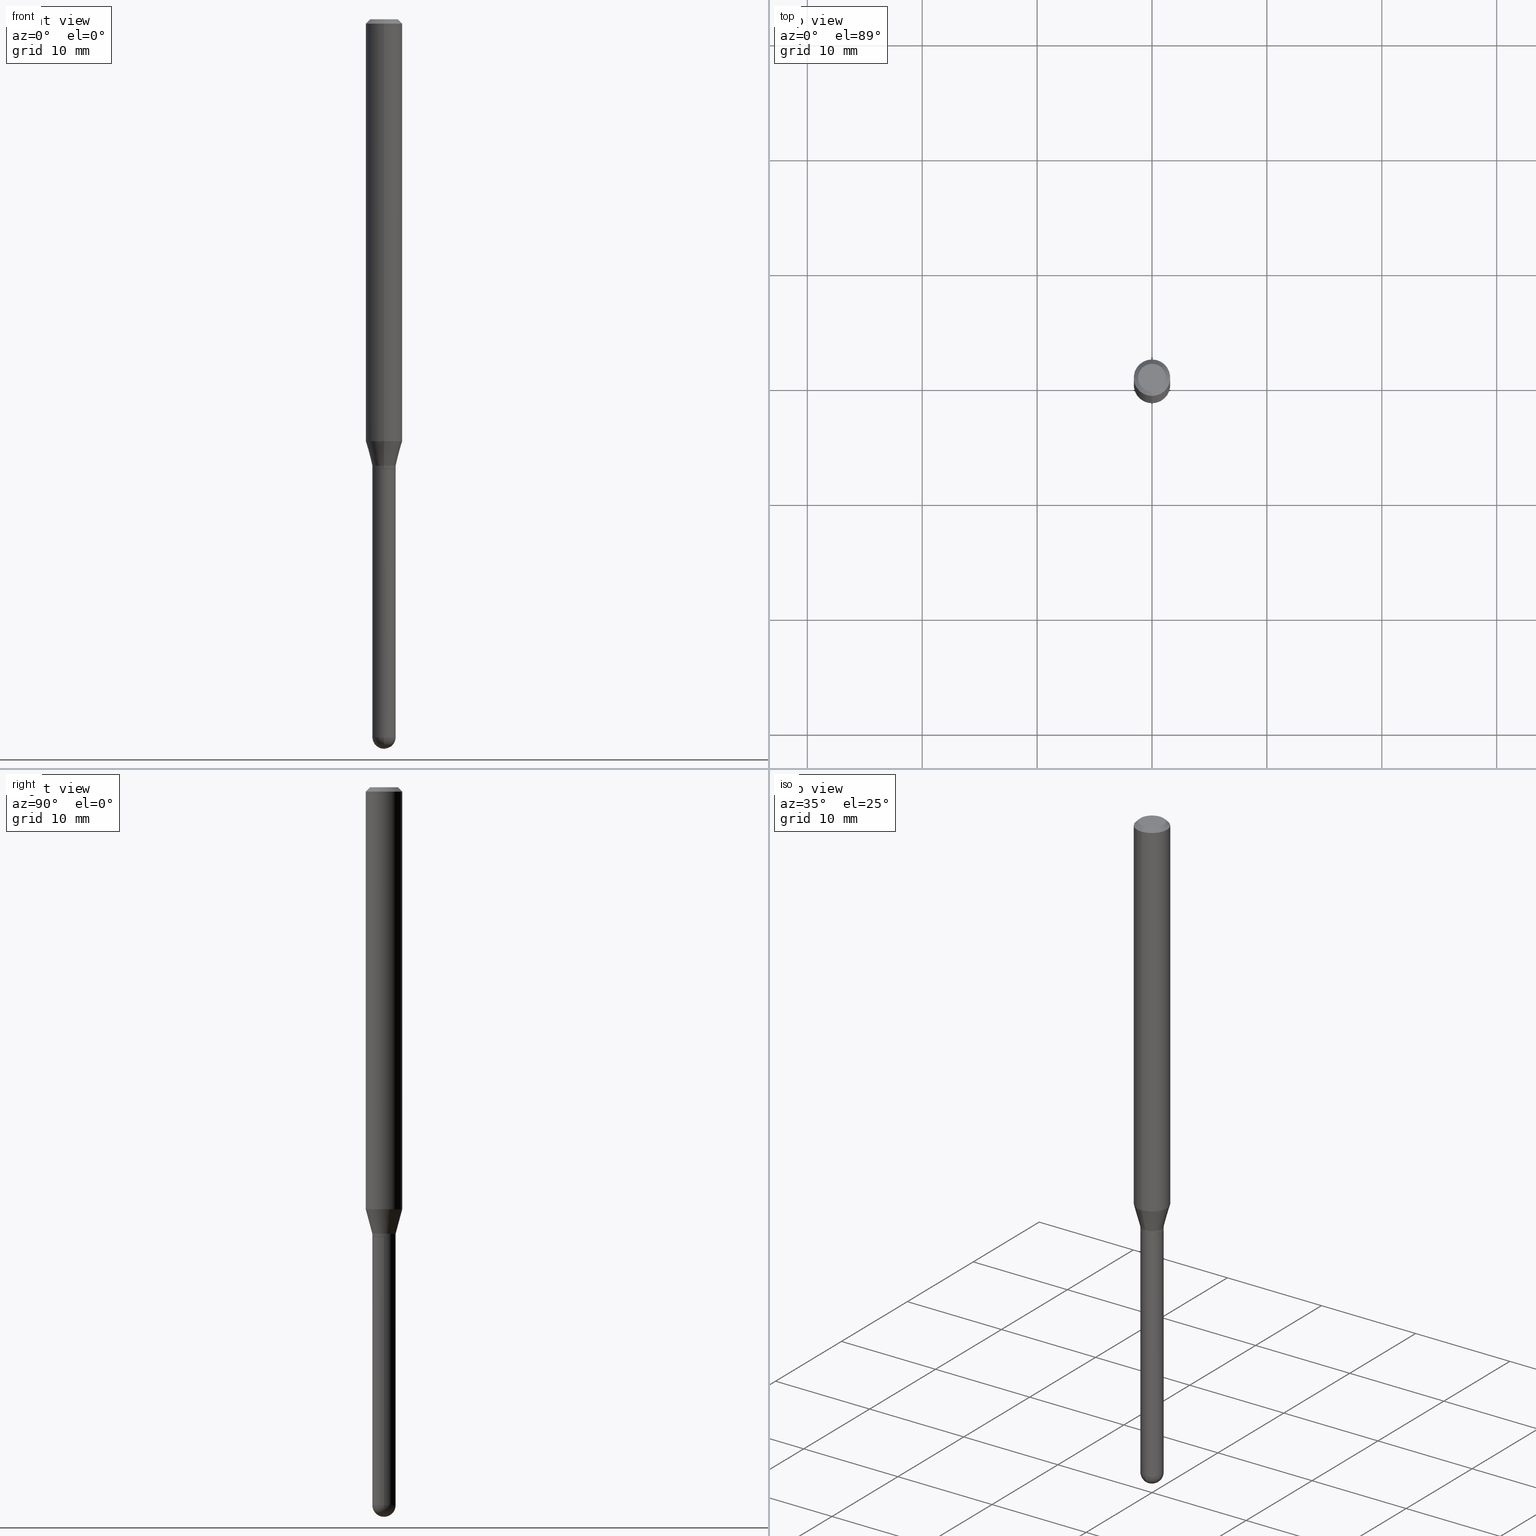
[diagram: canonical four-view strip — front | top / right | iso, engineering-drawing reading convention]
A machine part, canonical four-view strip (front | top / right | iso — engineering-drawing reading convention). The complete STEP part file that produces these views, byte-faithful:
ISO-10303-21;
HEADER;
FILE_DESCRIPTION (( 'STEP AP203' ),
    '1' );
FILE_NAME ('01024.STEP',
    '2024-03-07T19:53:04',
    ( '' ),
    ( '' ),
    'SwSTEP 2.0',
    'SolidWorks 2023',
    '' );
FILE_SCHEMA (( 'CONFIG_CONTROL_DESIGN' ));
ENDSEC;

DATA;
#1 = DIRECTION ( 'NONE',  ( -2.445439558819797748E-29, 3.491523222734966752E-15, 1.000000000000000000 ) ) ;
#2 = ORIENTED_EDGE ( 'NONE', *, *, #418, .F. ) ;
#3 = DIRECTION ( 'NONE',  ( -2.445468806185136597E-29, 3.491481338843145583E-15, 1.000000000000000000 ) ) ;
#4 = EDGE_CURVE ( 'NONE', #256, #79, #27, .T. ) ;
#5 = ORIENTED_EDGE ( 'NONE', *, *, #51, .T. ) ;
#6 = CC_DESIGN_APPROVAL ( #399, ( #335 ) ) ;
#7 = FACE_OUTER_BOUND ( 'NONE', #200, .T. ) ;
#8 = ORIENTED_EDGE ( 'NONE', *, *, #202, .F. ) ;
#9 = EDGE_CURVE ( 'NONE', #159, #447, #180, .T. ) ;
#10 = DIRECTION ( 'NONE',  ( 1.000000000000000000, -6.982962677686259611E-15, 0.000000000000000000 ) ) ;
#11 = ORIENTED_EDGE ( 'NONE', *, *, #299, .T. ) ;
#12 = COORDINATED_UNIVERSAL_TIME_OFFSET ( 5, 0, .BEHIND. ) ;
#13 = CARTESIAN_POINT ( 'NONE',  ( -2.793185071074095589E-16, -0.04000000000000489275, -1.539500000000000091 ) ) ;
#14 = ORIENTED_EDGE ( 'NONE', *, *, #226, .T. ) ;
#15 = VECTOR ( 'NONE', #104, 39.37007874015748143 ) ;
#16 = AXIS2_PLACEMENT_3D ( 'NONE', #512, #158, #109 ) ;
#17 = ORIENTED_EDGE ( 'NONE', *, *, #288, .T. ) ;
#18 = DIRECTION ( 'NONE',  ( 1.000000000000000000, -6.982962677686259611E-15, 0.000000000000000000 ) ) ;
#19 = DIRECTION ( 'NONE',  ( 5.024295867788190974E-15, 0.7071067811865681119, 0.7071067811865270336 ) ) ;
#20 = ADVANCED_FACE ( 'NONE', ( #456 ), #100, .F. ) ;
#21 = AXIS2_PLACEMENT_3D ( 'NONE', #161, #73, #388 ) ;
#22 = CIRCLE ( 'NONE', #138, 0.04749999999999999362 ) ;
#23 = CARTESIAN_POINT ( 'NONE',  ( 3.765976920582489743E-29, -5.376945763011849548E-15, -1.540000000000000036 ) ) ;
#24 = DIRECTION ( 'NONE',  ( -2.445439558819798028E-29, 3.491523222734966752E-15, 1.000000000000000000 ) ) ;
#25 = ADVANCED_FACE ( 'NONE', ( #72 ), #68, .T. ) ;
#26 = DIRECTION ( 'NONE',  ( -2.445439558819797748E-29, 3.491523222734966752E-15, 1.000000000000000000 ) ) ;
#27 = CIRCLE ( 'NONE', #165, 0.04000000000000000083 ) ;
#28 = ADVANCED_FACE ( 'NONE', ( #496 ), #197, .T. ) ;
#29 = APPROVAL_PERSON_ORGANIZATION ( #284, #229, #133 ) ;
#30 = CARTESIAN_POINT ( 'NONE',  ( 3.536176169686316712E-29, -5.048843334365790942E-15, -1.446028856829699283 ) ) ;
#31 = ORIENTED_EDGE ( 'NONE', *, *, #273, .T. ) ;
#32 = COORDINATED_UNIVERSAL_TIME_OFFSET ( 5, 0, .BEHIND. ) ;
#33 = CARTESIAN_POINT ( 'NONE',  ( 3.764754200803079787E-29, -5.375200001400483162E-15, -1.539500000000000313 ) ) ;
#34 = ORIENTED_EDGE ( 'NONE', *, *, #90, .F. ) ;
#35 = FACE_OUTER_BOUND ( 'NONE', #466, .T. ) ;
#36 = CARTESIAN_POINT ( 'NONE',  ( 6.012432598058718877E-29, -8.593942680750727058E-15, -2.459999999999999964 ) ) ;
#37 = ORIENTED_EDGE ( 'NONE', *, *, #264, .F. ) ;
#38 = EDGE_CURVE ( 'NONE', #368, #332, #497, .T. ) ;
#39 = SPHERICAL_SURFACE ( 'NONE', #377, 0.04000000000000007022 ) ;
#40 = DIRECTION ( 'NONE',  ( -2.445439558819798028E-29, 3.491523222734966752E-15, 1.000000000000000000 ) ) ;
#41 = VERTEX_POINT ( 'NONE', #148 ) ;
#42 = CIRCLE ( 'NONE', #467, 0.04000000000000000083 ) ;
#43 = DIMENSIONAL_EXPONENTS ( 1.000000000000000000, 0.000000000000000000, 0.000000000000000000, 0.000000000000000000, 0.000000000000000000, 0.000000000000000000, 0.000000000000000000 ) ;
#44 = CARTESIAN_POINT ( 'NONE',  ( 3.840629472727447874E-16, 0.04749999999999999362, -1.747056831868805136E-16 ) ) ;
#45 = CARTESIAN_POINT ( 'NONE',  ( 3.641531520770863293E-16, 0.03999999999999429706, -1.530000000000000249 ) ) ;
#46 = EDGE_CURVE ( 'NONE', #401, #175, #457, .T. ) ;
#47 = CARTESIAN_POINT ( 'NONE',  ( 3.668159338229699547E-31, -5.237284834102453580E-17, -0.01500000000000000812 ) ) ;
#48 = ORIENTED_EDGE ( 'NONE', *, *, #299, .F. ) ;
#49 = PERSON_AND_ORGANIZATION ( #509, #167 ) ;
#50 = CARTESIAN_POINT ( 'NONE',  ( 2.824407374646762144E-16, 0.03949999999999462275, -1.540000000000000258 ) ) ;
#51 = EDGE_CURVE ( 'NONE', #332, #487, #225, .T. ) ;
#52 = APPLICATION_CONTEXT ( 'configuration controlled 3d designs of mechanical parts and assemblies' ) ;
#53 = ORIENTED_EDGE ( 'NONE', *, *, #372, .F. ) ;
#54 = AXIS2_PLACEMENT_3D ( 'NONE', #30, #461, #425 ) ;
#55 = CIRCLE ( 'NONE', #120, 0.04000000000000000083 ) ;
#56 = PERSON_AND_ORGANIZATION ( #509, #167 ) ;
#57 = DIRECTION ( 'NONE',  ( 1.000000000000000000, -6.982962677686259611E-15, 0.000000000000000000 ) ) ;
#58 = EDGE_LOOP ( 'NONE', ( #61, #341, #163, #412 ) ) ;
#59 = DIRECTION ( 'NONE',  ( -6.982962677686265922E-15, -1.000000000000000000, 3.483106191921935554E-15 ) ) ;
#60 = MANIFOLD_SOLID_BREP ( 'Body-Move/Copy2[1]', #303 ) ;
#61 = ORIENTED_EDGE ( 'NONE', *, *, #9, .F. ) ;
#62 = EDGE_LOOP ( 'NONE', ( #34, #394, #371, #249, #135 ) ) ;
#63 = AXIS2_PLACEMENT_3D ( 'NONE', #230, #185, #346 ) ;
#64 = CIRCLE ( 'NONE', #490, 0.03999999999999964695 ) ;
#65 = DIRECTION ( 'NONE',  ( -2.445439558819798028E-29, 3.491523222734966752E-15, 1.000000000000000000 ) ) ;
#66 = CARTESIAN_POINT ( 'NONE',  ( 3.741522524994291182E-29, -5.342030530784498954E-15, -1.530000000000000027 ) ) ;
#67 = DIRECTION ( 'NONE',  ( -6.982962677686265922E-15, -1.000000000000000000, 3.491523222734966752E-15 ) ) ;
#68 = CONICAL_SURFACE ( 'NONE', #63, 0.03999999999999964001, 0.2617993877991502405 ) ;
#69 = LOCAL_TIME ( 14, 53, 4.000000000000000000, #32 ) ;
#70 = CARTESIAN_POINT ( 'NONE',  ( 0.000000000000000000, 0.000000000000000000, 0.000000000000000000 ) ) ;
#71 = EDGE_CURVE ( 'NONE', #159, #175, #347, .T. ) ;
#72 = FACE_OUTER_BOUND ( 'NONE', #290, .T. ) ;
#73 = DIRECTION ( 'NONE',  ( -2.445439558819798028E-29, 3.491523222734966752E-15, 1.000000000000000000 ) ) ;
#74 = AXIS2_PLACEMENT_3D ( 'NONE', #84, #398, #116 ) ;
#75 = CARTESIAN_POINT ( 'NONE',  ( 3.766021961525111077E-29, -5.376881261818445562E-15, -1.540000000000000258 ) ) ;
#76 = CALENDAR_DATE ( 2024, 7, 3 ) ;
#77 = CARTESIAN_POINT ( 'NONE',  ( 3.764754200803079787E-29, -5.375200001400483162E-15, -1.539500000000000313 ) ) ;
#78 = EDGE_CURVE ( 'NONE', #175, #452, #261, .T. ) ;
#79 = VERTEX_POINT ( 'NONE', #417 ) ;
#80 = PERSON_AND_ORGANIZATION_ROLE ( 'design_owner' ) ;
#81 = FACE_OUTER_BOUND ( 'NONE', #283, .T. ) ;
#82 = DIRECTION ( 'NONE',  ( 1.000000000000000000, -6.982962677686259611E-15, 0.000000000000000000 ) ) ;
#83 = AXIS2_PLACEMENT_3D ( 'NONE', #77, #349, #469 ) ;
#84 = CARTESIAN_POINT ( 'NONE',  ( 0.000000000000000000, 0.000000000000000000, 0.000000000000000000 ) ) ;
#85 = CIRCLE ( 'NONE', #110, 0.04749999999999999362 ) ;
#86 = EDGE_CURVE ( 'NONE', #447, #452, #131, .T. ) ;
#87 = DIRECTION ( 'NONE',  ( -2.445468806185136597E-29, 3.491481338843145583E-15, 1.000000000000000000 ) ) ;
#88 = CARTESIAN_POINT ( 'NONE',  ( 3.668159338229699547E-31, -5.237284834102453580E-17, -0.01500000000000000812 ) ) ;
#89 = ORIENTED_EDGE ( 'NONE', *, *, #214, .T. ) ;
#90 = EDGE_CURVE ( 'NONE', #177, #476, #304, .T. ) ;
#91 = FACE_OUTER_BOUND ( 'NONE', #173, .T. ) ;
#92 = ORIENTED_EDGE ( 'NONE', *, *, #354, .F. ) ;
#93 = SHAPE_DEFINITION_REPRESENTATION ( #338, #139 ) ;
#94 = DIRECTION ( 'NONE',  ( -4.851104656540964275E-15, -0.7071067811865500152, -0.7071067811865450192 ) ) ;
#95 = ORIENTED_EDGE ( 'NONE', *, *, #427, .T. ) ;
#96 = DIRECTION ( 'NONE',  ( -2.445439558819798028E-29, 3.491523222734966752E-15, 1.000000000000000000 ) ) ;
#97 = EDGE_CURVE ( 'NONE', #368, #401, #265, .T. ) ;
#98 = ORIENTED_EDGE ( 'NONE', *, *, #46, .F. ) ;
#99 = EDGE_LOOP ( 'NONE', ( #112, #17, #433, #219 ) ) ;
#100 = PLANE ( 'NONE',  #458 ) ;
#101 = CIRCLE ( 'NONE', #252, 0.06250000000000000000 ) ;
#102 = DIRECTION ( 'NONE',  ( 1.839019923739599921E-15, 0.2588190451025249028, 0.9659258262890670910 ) ) ;
#103 = DIRECTION ( 'NONE',  ( -1.807323732225329745E-15, -0.2588190451025181305, 0.9659258262890689783 ) ) ;
#104 = DIRECTION ( 'NONE',  ( -4.937700262164674260E-15, -0.7071067811865632269, 0.7071067811865319186 ) ) ;
#105 = AXIS2_PLACEMENT_3D ( 'NONE', #36, #280, #238 ) ;
#106 = PRODUCT_DEFINITION_FORMATION_WITH_SPECIFIED_SOURCE ( 'ANY', '', #434, .NOT_KNOWN. ) ;
#107 = DIRECTION ( 'NONE',  ( -2.445439558819798028E-29, 3.491523222734966752E-15, 1.000000000000000000 ) ) ;
#108 = CARTESIAN_POINT ( 'NONE',  ( 3.766021961525111077E-29, -5.376881261818445562E-15, -1.540000000000000258 ) ) ;
#109 = DIRECTION ( 'NONE',  ( -6.982962677686265133E-15, -1.000000000000000000, 6.916070870036109544E-15 ) ) ;
#110 = AXIS2_PLACEMENT_3D ( 'NONE', #272, #236, #174 ) ;
#111 = CARTESIAN_POINT ( 'NONE',  ( -0.04000000000000000083, -6.698745583382250838E-15, -2.459999999999999964 ) ) ;
#112 = ORIENTED_EDGE ( 'NONE', *, *, #427, .F. ) ;
#113 = CARTESIAN_POINT ( 'NONE',  ( 4.440892098500982135E-16, 0.06249999999999995837, -0.01500000000000022669 ) ) ;
#114 = PRODUCT_DEFINITION ( 'UNKNOWN', '', #106, #144 ) ;
#115 = DIRECTION ( 'NONE',  ( 1.000000000000000000, -6.982962677686259611E-15, 0.000000000000000000 ) ) ;
#116 = DIRECTION ( 'NONE',  ( 1.000000000000000000, -6.982962677686265922E-15, 4.876176775795935793E-29 ) ) ;
#117 = ADVANCED_FACE ( 'NONE', ( #420 ), #218, .T. ) ;
#118 = VECTOR ( 'NONE', #103, 39.37007874015748143 ) ;
#119 = DIRECTION ( 'NONE',  ( -6.982962677686265922E-15, -1.000000000000000000, 3.491523222734966752E-15 ) ) ;
#120 = AXIS2_PLACEMENT_3D ( 'NONE', #446, #289, #10 ) ;
#121 = ORIENTED_EDGE ( 'NONE', *, *, #504, .T. ) ;
#122 = CC_DESIGN_PERSON_AND_ORGANIZATION_ASSIGNMENT ( #488, #375, ( #106 ) ) ;
#123 = CARTESIAN_POINT ( 'NONE',  ( 4.440892098500981149E-16, 0.06249999999999499012, -1.446028856829699505 ) ) ;
#124 = ORIENTED_EDGE ( 'NONE', *, *, #264, .T. ) ;
#125 = PERSON_AND_ORGANIZATION ( #509, #167 ) ;
#126 = CARTESIAN_POINT ( 'NONE',  ( 0.000000000000000000, 0.000000000000000000, 0.000000000000000000 ) ) ;
#127 = ORIENTED_EDGE ( 'NONE', *, *, #162, .T. ) ;
#128 = DATE_AND_TIME ( #444, #262 ) ;
#129 = LINE ( 'NONE', #480, #269 ) ;
#130 = ORIENTED_EDGE ( 'NONE', *, *, #4, .F. ) ;
#131 = CIRCLE ( 'NONE', #383, 0.06250000000000000000 ) ;
#132 = CIRCLE ( 'NONE', #183, 0.04000000000000007022 ) ;
#133 = APPROVAL_ROLE ( '' ) ;
#134 = ORIENTED_EDGE ( 'NONE', *, *, #38, .F. ) ;
#135 = ORIENTED_EDGE ( 'NONE', *, *, #209, .F. ) ;
#136 = EDGE_CURVE ( 'NONE', #332, #368, #489, .T. ) ;
#137 = CARTESIAN_POINT ( 'NONE',  ( 3.741522524994291182E-29, -5.342030530784498954E-15, -1.530000000000000027 ) ) ;
#138 = AXIS2_PLACEMENT_3D ( 'NONE', #362, #359, #507 ) ;
#139 = ADVANCED_BREP_SHAPE_REPRESENTATION ( '01024', ( #60, #223, #296 ), #326 ) ;
#140 = CARTESIAN_POINT ( 'NONE',  ( -2.793185071074107422E-16, -0.04000000000000498296, -1.529999999999999805 ) ) ;
#141 = DIRECTION ( 'NONE',  ( -2.445468806185136877E-29, 3.491481338843145188E-15, 1.000000000000000000 ) ) ;
#142 = EDGE_CURVE ( 'NONE', #256, #258, #500, .T. ) ;
#143 = CARTESIAN_POINT ( 'NONE',  ( 0.04000000000000000083, -2.793185071074506290E-16, 1.950470710318374387E-30 ) ) ;
#144 = DESIGN_CONTEXT ( 'detailed design', #413, 'design' ) ;
#145 = AXIS2_PLACEMENT_3D ( 'NONE', #75, #472, #436 ) ;
#146 = CC_DESIGN_APPROVAL ( #179, ( #114 ) ) ;
#147 = CC_DESIGN_DATE_AND_TIME_ASSIGNMENT ( #178, #411, ( #335 ) ) ;
#148 = CARTESIAN_POINT ( 'NONE',  ( -3.773273898774340269E-16, -0.04749999999999999362, 1.569890229729413328E-16 ) ) ;
#149 = FACE_OUTER_BOUND ( 'NONE', #246, .T. ) ;
#150 = COORDINATED_UNIVERSAL_TIME_OFFSET ( 5, 0, .BEHIND. ) ;
#151 = DIRECTION ( 'NONE',  ( -6.982962677686266711E-15, -1.000000000000000000, 6.829619984160719774E-15 ) ) ;
#152 = DATE_AND_TIME ( #76, #278 ) ;
#153 = AXIS2_PLACEMENT_3D ( 'NONE', #503, #307, #308 ) ;
#154 = DIRECTION ( 'NONE',  ( -1.000000000000000000, 6.982962677686265922E-15, -4.883557194083112340E-29 ) ) ;
#155 = EDGE_LOOP ( 'NONE', ( #213, #5, #8, #297 ) ) ;
#156 = PERSON_AND_ORGANIZATION ( #509, #167 ) ;
#157 = ADVANCED_FACE ( 'NONE', ( #266 ), #421, .T. ) ;
#158 = DIRECTION ( 'NONE',  ( -2.445439558819798028E-29, 3.491523222734966752E-15, 1.000000000000000000 ) ) ;
#159 = VERTEX_POINT ( 'NONE', #45 ) ;
#160 = CARTESIAN_POINT ( 'NONE',  ( 0.000000000000000000, 0.000000000000000000, 0.000000000000000000 ) ) ;
#161 = CARTESIAN_POINT ( 'NONE',  ( 0.000000000000000000, 0.000000000000000000, 0.000000000000000000 ) ) ;
#162 = EDGE_CURVE ( 'NONE', #447, #492, #432, .T. ) ;
#163 = ORIENTED_EDGE ( 'NONE', *, *, #78, .T. ) ;
#164 =( LENGTH_UNIT ( ) NAMED_UNIT ( * ) SI_UNIT ( $, .METRE. ) );
#165 = AXIS2_PLACEMENT_3D ( 'NONE', #224, #228, #18 ) ;
#166 = FACE_OUTER_BOUND ( 'NONE', #205, .T. ) ;
#167 = ORGANIZATION ( 'UNSPECIFIED', 'UNSPECIFIED', '' ) ;
#168 = VERTEX_POINT ( 'NONE', #275 ) ;
#169 = DIRECTION ( 'NONE',  ( -2.445439558819798028E-29, 3.491523222734966752E-15, 1.000000000000000000 ) ) ;
#170 = ORIENTED_EDGE ( 'NONE', *, *, #334, .F. ) ;
#171 = ADVANCED_FACE ( 'NONE', ( #464 ), #352, .T. ) ;
#172 = LINE ( 'NONE', #331, #416 ) ;
#173 = EDGE_LOOP ( 'NONE', ( #48, #300, #353, #324 ) ) ;
#174 = DIRECTION ( 'NONE',  ( -6.982962677686266711E-15, -1.000000000000000000, 3.491523222734967147E-15 ) ) ;
#175 = VERTEX_POINT ( 'NONE', #243 ) ;
#176 = AXIS2_PLACEMENT_3D ( 'NONE', #251, #169, #119 ) ;
#177 = VERTEX_POINT ( 'NONE', #111 ) ;
#178 = DATE_AND_TIME ( #211, #186 ) ;
#179 = APPROVAL ( #474, 'UNSPECIFIED' ) ;
#180 = LINE ( 'NONE', #424, #277 ) ;
#181 = ORIENTED_EDGE ( 'NONE', *, *, #323, .F. ) ;
#182 = VECTOR ( 'NONE', #1, 39.37007874015748143 ) ;
#183 = AXIS2_PLACEMENT_3D ( 'NONE', #449, #440, #292 ) ;
#184 = DIRECTION ( 'NONE',  ( -2.445439558819798028E-29, 3.491523222734966752E-15, 1.000000000000000000 ) ) ;
#185 = DIRECTION ( 'NONE',  ( -2.445439558819798028E-29, 3.491523222734966752E-15, 1.000000000000000000 ) ) ;
#186 = LOCAL_TIME ( 14, 53, 4.000000000000000000, #12 ) ;
#187 = DIRECTION ( 'NONE',  ( -6.982962677686266711E-15, -1.000000000000000000, 3.491523222734967147E-15 ) ) ;
#188 = ORIENTED_EDGE ( 'NONE', *, *, #78, .F. ) ;
#189 = DATE_AND_TIME ( #471, #69 ) ;
#190 = DIRECTION ( 'NONE',  ( 6.982962677686265922E-15, 1.000000000000000000, -6.829619984160646410E-15 ) ) ;
#191 = ORIENTED_EDGE ( 'NONE', *, *, #445, .T. ) ;
#192 = CARTESIAN_POINT ( 'NONE',  ( -4.364351673553559242E-16, -0.06250000000000500988, -1.446028856829699061 ) ) ;
#193 = PLANE ( 'NONE',  #316 ) ;
#194 = ORIENTED_EDGE ( 'NONE', *, *, #51, .F. ) ;
#195 = DATE_TIME_ROLE ( 'creation_date' ) ;
#196 = AXIS2_PLACEMENT_3D ( 'NONE', #70, #24, #187 ) ;
#197 = CONICAL_SURFACE ( 'NONE', #465, 0.03999999999999964001, 0.2617993877991502405 ) ;
#198 = AXIS2_PLACEMENT_3D ( 'NONE', #396, #40, #151 ) ;
#199 = FACE_OUTER_BOUND ( 'NONE', #484, .T. ) ;
#200 = EDGE_LOOP ( 'NONE', ( #429, #127, #170, #37 ) ) ;
#201 = DIRECTION ( 'NONE',  ( -1.000000000000000000, 6.982962677686265922E-15, -4.883557194083112340E-29 ) ) ;
#202 = EDGE_CURVE ( 'NONE', #401, #487, #477, .T. ) ;
#203 = CARTESIAN_POINT ( 'NONE',  ( 0.04000000000000000083, -7.262281184793741991E-15, -2.459999999999999964 ) ) ;
#204 = DIRECTION ( 'NONE',  ( -2.445439558819798028E-29, 3.491523222734966752E-15, 1.000000000000000000 ) ) ;
#205 = EDGE_LOOP ( 'NONE', ( #121, #340, #319, #337, #450 ) ) ;
#206 = CLOSED_SHELL ( 'NONE', ( #414, #306, #364, #379, #25, #28, #217, #117, #221, #20, #282, #157 ) ) ;
#207 = CARTESIAN_POINT ( 'NONE',  ( -4.287811248607203282E-16, -0.06250000000000005551, -0.01499999999999979128 ) ) ;
#208 = CONICAL_SURFACE ( 'NONE', #448, 0.06250000000000000000, 0.7853981633974483900 ) ;
#209 = EDGE_CURVE ( 'NONE', #476, #258, #267, .T. ) ;
#210 = ORIENTED_EDGE ( 'NONE', *, *, #86, .T. ) ;
#211 = CALENDAR_DATE ( 2024, 7, 3 ) ;
#212 = DIRECTION ( 'NONE',  ( -6.982962677686265922E-15, -1.000000000000000000, 3.483106191921935554E-15 ) ) ;
#213 = ORIENTED_EDGE ( 'NONE', *, *, #38, .T. ) ;
#214 = EDGE_CURVE ( 'NONE', #360, #79, #232, .T. ) ;
#215 = CARTESIAN_POINT ( 'NONE',  ( -2.842170943039801268E-16, -0.04000000000000862588, -2.459999999999999520 ) ) ;
#216 = ORIENTED_EDGE ( 'NONE', *, *, #209, .T. ) ;
#217 = ADVANCED_FACE ( 'NONE', ( #199 ), #393, .T. ) ;
#218 = CONICAL_SURFACE ( 'NONE', #311, 0.06250000000000000000, 0.7853981633974483900 ) ;
#219 = ORIENTED_EDGE ( 'NONE', *, *, #71, .F. ) ;
#220 = AXIS2_PLACEMENT_3D ( 'NONE', #88, #96, #212 ) ;
#221 = ADVANCED_FACE ( 'NONE', ( #231 ), #193, .F. ) ;
#222 = CARTESIAN_POINT ( 'NONE',  ( 3.536176169686316712E-29, -5.048843334365790942E-15, -1.446028856829699283 ) ) ;
#223 = MANIFOLD_SOLID_BREP ( 'Body-Move/Copy2[2]', #206 ) ;
#224 = CARTESIAN_POINT ( 'NONE',  ( 6.015853263215436432E-29, -8.589044093554138346E-15, -2.459999999999999964 ) ) ;
#225 = LINE ( 'NONE', #382, #342 ) ;
#226 = EDGE_CURVE ( 'NONE', #258, #476, #376, .T. ) ;
#227 = CIRCLE ( 'NONE', #286, 0.04000000000000000083 ) ;
#228 = DIRECTION ( 'NONE',  ( -2.445468806185136597E-29, 3.491481338843145583E-15, 1.000000000000000000 ) ) ;
#229 = APPROVAL ( #241, 'UNSPECIFIED' ) ;
#230 = CARTESIAN_POINT ( 'NONE',  ( 3.741522524994291182E-29, -5.342030530784498954E-15, -1.530000000000000027 ) ) ;
#231 = FACE_OUTER_BOUND ( 'NONE', #419, .T. ) ;
#232 = CIRCLE ( 'NONE', #105, 0.04000000000000007022 ) ;
#233 = APPROVAL_PERSON_ORGANIZATION ( #56, #399, #369 ) ;
#234 = LENGTH_MEASURE_WITH_UNIT ( LENGTH_MEASURE( 0.02539999999999999897 ), #164 );
#235 = CC_DESIGN_PERSON_AND_ORGANIZATION_ASSIGNMENT ( #156, #239, ( #114 ) ) ;
#236 = DIRECTION ( 'NONE',  ( -2.445439558819798028E-29, 3.491523222734966752E-15, 1.000000000000000000 ) ) ;
#237 = FACE_OUTER_BOUND ( 'NONE', #357, .T. ) ;
#238 = DIRECTION ( 'NONE',  ( 6.982962677686265922E-15, 1.000000000000000000, 0.000000000000000000 ) ) ;
#239 = PERSON_AND_ORGANIZATION_ROLE ( 'creator' ) ;
#240 = LINE ( 'NONE', #315, #182 ) ;
#241 = APPROVAL_STATUS ( 'not_yet_approved' ) ;
#242 = VECTOR ( 'NONE', #384, 39.37007874015748143 ) ;
#243 = CARTESIAN_POINT ( 'NONE',  ( -2.793185071074107422E-16, -0.04000000000000498296, -1.529999999999999805 ) ) ;
#244 = DIRECTION ( 'NONE',  ( 6.982962677686265922E-15, 1.000000000000000000, -6.829619984160646410E-15 ) ) ;
#245 = CYLINDRICAL_SURFACE ( 'NONE', #176, 0.06250000000000000000 ) ;
#246 = EDGE_LOOP ( 'NONE', ( #194, #276, #495, #441 ) ) ;
#247 = DATE_AND_TIME ( #482, #454 ) ;
#248 = CARTESIAN_POINT ( 'NONE',  ( -2.758270257685698058E-16, -0.03950000000000537803, -1.539999999999999591 ) ) ;
#249 = ORIENTED_EDGE ( 'NONE', *, *, #142, .T. ) ;
#250 = PERSON_AND_ORGANIZATION_ROLE ( 'classification_officer' ) ;
#251 = CARTESIAN_POINT ( 'NONE',  ( 0.000000000000000000, 0.000000000000000000, 0.000000000000000000 ) ) ;
#252 = AXIS2_PLACEMENT_3D ( 'NONE', #367, #491, #59 ) ;
#253 = ORIENTED_EDGE ( 'NONE', *, *, #504, .F. ) ;
#254 = APPROVAL_STATUS ( 'not_yet_approved' ) ;
#255 = DIRECTION ( 'NONE',  ( 2.445439558819798028E-29, -3.491523222734966752E-15, -1.000000000000000000 ) ) ;
#256 = VERTEX_POINT ( 'NONE', #203 ) ;
#257 = EDGE_CURVE ( 'NONE', #452, #447, #366, .T. ) ;
#258 = VERTEX_POINT ( 'NONE', #356 ) ;
#259 = ADVANCED_FACE ( 'NONE', ( #81 ), #460, .T. ) ;
#260 = AXIS2_PLACEMENT_3D ( 'NONE', #23, #184, #344 ) ;
#261 = LINE ( 'NONE', #140, #118 ) ;
#262 = LOCAL_TIME ( 14, 53, 4.000000000000000000, #451 ) ;
#263 = CARTESIAN_POINT ( 'NONE',  ( 3.765976920582489743E-29, -5.376945763011849548E-15, -1.540000000000000036 ) ) ;
#264 = EDGE_CURVE ( 'NONE', #452, #168, #240, .T. ) ;
#265 = LINE ( 'NONE', #386, #15 ) ;
#266 = FACE_OUTER_BOUND ( 'NONE', #99, .T. ) ;
#267 = CIRCLE ( 'NONE', #333, 0.04000000000000000083 ) ;
#268 = CIRCLE ( 'NONE', #198, 0.03999999999999964001 ) ;
#269 = VECTOR ( 'NONE', #295, 39.37007874015748143 ) ;
#270 = DIRECTION ( 'NONE',  ( -6.982962677686266711E-15, -1.000000000000000000, 6.829619984160719774E-15 ) ) ;
#271 = EDGE_CURVE ( 'NONE', #175, #159, #268, .T. ) ;
#272 = CARTESIAN_POINT ( 'NONE',  ( 2.166251086866784740E-46, -3.092906528313664971E-32, -8.858330106969590435E-18 ) ) ;
#273 = EDGE_CURVE ( 'NONE', #462, #41, #22, .T. ) ;
#274 =( NAMED_UNIT ( * ) PLANE_ANGLE_UNIT ( ) SI_UNIT ( $, .RADIAN. ) );
#275 = CARTESIAN_POINT ( 'NONE',  ( -4.364351673553912750E-16, -0.06250000000000005551, -0.01499999999999979128 ) ) ;
#276 = ORIENTED_EDGE ( 'NONE', *, *, #136, .T. ) ;
#277 = VECTOR ( 'NONE', #102, 39.37007874015748143 ) ;
#278 = LOCAL_TIME ( 14, 53, 4.000000000000000000, #150 ) ;
#279 = DIRECTION ( 'NONE',  ( 0.000000000000000000, 0.000000000000000000, 1.000000000000000000 ) ) ;
#280 = DIRECTION ( 'NONE',  ( 1.000000000000000000, -6.982962677686265922E-15, 4.883557194083112340E-29 ) ) ;
#281 = CARTESIAN_POINT ( 'NONE',  ( 3.316907271900976096E-16, 0.04749999999999999362, -1.702765181333956876E-16 ) ) ;
#282 = ADVANCED_FACE ( 'NONE', ( #149 ), #439, .T. ) ;
#283 = EDGE_LOOP ( 'NONE', ( #407, #89, #130, #2 ) ) ;
#284 = PERSON_AND_ORGANIZATION ( #509, #167 ) ;
#285 = DIRECTION ( 'NONE',  ( 2.445439558819798028E-29, -3.491523222734966752E-15, -1.000000000000000000 ) ) ;
#286 = AXIS2_PLACEMENT_3D ( 'NONE', #363, #3, #57 ) ;
#287 = DIRECTION ( 'NONE',  ( -6.982962677686265133E-15, -1.000000000000000000, 6.916070870036109544E-15 ) ) ;
#288 = EDGE_CURVE ( 'NONE', #487, #401, #64, .T. ) ;
#289 = DIRECTION ( 'NONE',  ( -2.445468806185136597E-29, 3.491481338843145583E-15, 1.000000000000000000 ) ) ;
#290 = EDGE_LOOP ( 'NONE', ( #378, #330, #453, #188 ) ) ;
#291 = PRODUCT_RELATED_PRODUCT_CATEGORY ( 'detail', '', ( #434 ) ) ;
#292 = DIRECTION ( 'NONE',  ( -7.105427357601000281E-15, -1.000000000000000000, 0.000000000000000000 ) ) ;
#293 = ORIENTED_EDGE ( 'NONE', *, *, #271, .F. ) ;
#294 = APPROVAL_DATE_TIME ( #128, #399 ) ;
#295 = DIRECTION ( 'NONE',  ( 4.937700262164548042E-15, 0.7071067811865451302, -0.7071067811865499042 ) ) ;
#296 = AXIS2_PLACEMENT_3D ( 'NONE', #160, #279, #395 ) ;
#297 = ORIENTED_EDGE ( 'NONE', *, *, #97, .F. ) ;
#298 = SECURITY_CLASSIFICATION_LEVEL ( 'unclassified' ) ;
#299 = EDGE_CURVE ( 'NONE', #41, #462, #85, .T. ) ;
#300 = ORIENTED_EDGE ( 'NONE', *, *, #372, .T. ) ;
#301 = COORDINATED_UNIVERSAL_TIME_OFFSET ( 5, 0, .BEHIND. ) ;
#302 = EDGE_LOOP ( 'NONE', ( #134, #374 ) ) ;
#303 = CLOSED_SHELL ( 'NONE', ( #423, #494, #473, #259, #171 ) ) ;
#304 = LINE ( 'NONE', #459, #242 ) ;
#305 = CC_DESIGN_SECURITY_CLASSIFICATION ( #335, ( #106 ) ) ;
#306 = ADVANCED_FACE ( 'NONE', ( #402 ), #391, .T. ) ;
#307 = DIRECTION ( 'NONE',  ( -2.445439558819798028E-29, 3.491523222734966752E-15, 1.000000000000000000 ) ) ;
#308 = DIRECTION ( 'NONE',  ( -6.982962677686265133E-15, -1.000000000000000000, 6.916070870036109544E-15 ) ) ;
#309 = DIRECTION ( 'NONE',  ( -6.982962677686265922E-15, -1.000000000000000000, 4.370956789862821150E-15 ) ) ;
#310 = EDGE_CURVE ( 'NONE', #360, #328, #132, .T. ) ;
#311 = AXIS2_PLACEMENT_3D ( 'NONE', #343, #499, #455 ) ;
#312 = AXIS2_PLACEMENT_3D ( 'NONE', #329, #204, #483 ) ;
#313 = DIRECTION ( 'NONE',  ( -6.982962677686266711E-15, -1.000000000000000000, 6.829619984160719774E-15 ) ) ;
#314 = DIRECTION ( 'NONE',  ( 6.982962677686265922E-15, 1.000000000000000000, -3.491523222734966752E-15 ) ) ;
#315 = CARTESIAN_POINT ( 'NONE',  ( -4.364351673553916201E-16, -0.06250000000000000000, 2.182202014209354220E-16 ) ) ;
#316 = AXIS2_PLACEMENT_3D ( 'NONE', #281, #285, #314 ) ;
#317 = APPROVAL_DATE_TIME ( #189, #179 ) ;
#318 = DIRECTION ( 'NONE',  ( -2.445439558819797748E-29, 3.491523222734966752E-15, 1.000000000000000000 ) ) ;
#319 = ORIENTED_EDGE ( 'NONE', *, *, #226, .F. ) ;
#320 = DIRECTION ( 'NONE',  ( -6.982962677686266711E-15, -1.000000000000000000, 6.829619984160718197E-15 ) ) ;
#321 = APPLICATION_PROTOCOL_DEFINITION ( 'international standard', 'config_control_design', 1994, #52 ) ;
#322 = DIRECTION ( 'NONE',  ( 6.982962677686265922E-15, 1.000000000000000000, -3.483106191921935554E-15 ) ) ;
#323 = EDGE_CURVE ( 'NONE', #492, #168, #405, .T. ) ;
#324 = ORIENTED_EDGE ( 'NONE', *, *, #445, .F. ) ;
#325 = APPROVAL_ROLE ( '' ) ;
#326 =( GEOMETRIC_REPRESENTATION_CONTEXT ( 3 ) GLOBAL_UNCERTAINTY_ASSIGNED_CONTEXT ( ( #350 ) ) GLOBAL_UNIT_ASSIGNED_CONTEXT ( ( #468, #274, #506 ) ) REPRESENTATION_CONTEXT ( 'NONE', 'WORKASPACE' ) );
#327 = CYLINDRICAL_SURFACE ( 'NONE', #422, 0.04000000000000000083 ) ;
#328 = VERTEX_POINT ( 'NONE', #215 ) ;
#329 = CARTESIAN_POINT ( 'NONE',  ( 0.000000000000000000, 0.000000000000000000, 0.000000000000000000 ) ) ;
#330 = ORIENTED_EDGE ( 'NONE', *, *, #9, .T. ) ;
#331 = CARTESIAN_POINT ( 'NONE',  ( 2.842170943040374672E-16, 0.03999999999999964001, -1.396609289093974227E-16 ) ) ;
#332 = VERTEX_POINT ( 'NONE', #50 ) ;
#333 = AXIS2_PLACEMENT_3D ( 'NONE', #108, #505, #115 ) ;
#334 = EDGE_CURVE ( 'NONE', #168, #492, #101, .T. ) ;
#335 = SECURITY_CLASSIFICATION ( '', '', #298 ) ;
#336 = CARTESIAN_POINT ( 'NONE',  ( 3.765976920582489743E-29, -5.376945763011849548E-15, -1.540000000000000036 ) ) ;
#337 = ORIENTED_EDGE ( 'NONE', *, *, #142, .F. ) ;
#338 = PRODUCT_DEFINITION_SHAPE ( 'NONE', 'NONE',  #114 ) ;
#339 = CC_DESIGN_PERSON_AND_ORGANIZATION_ASSIGNMENT ( #49, #250, ( #335 ) ) ;
#340 = ORIENTED_EDGE ( 'NONE', *, *, #90, .T. ) ;
#341 = ORIENTED_EDGE ( 'NONE', *, *, #71, .T. ) ;
#342 = VECTOR ( 'NONE', #19, 39.37007874015748143 ) ;
#343 = CARTESIAN_POINT ( 'NONE',  ( 3.668159338229699547E-31, -5.237284834102453580E-17, -0.01500000000000000812 ) ) ;
#344 = DIRECTION ( 'NONE',  ( -6.982962677686265133E-15, -1.000000000000000000, 6.916070870036109544E-15 ) ) ;
#345 = DIRECTION ( 'NONE',  ( -2.445439558819798028E-29, 3.491523222734966752E-15, 1.000000000000000000 ) ) ;
#346 = DIRECTION ( 'NONE',  ( -6.982962677686266711E-15, -1.000000000000000000, 6.829619984160719774E-15 ) ) ;
#347 = CIRCLE ( 'NONE', #437, 0.03999999999999964001 ) ;
#348 = CC_DESIGN_APPROVAL ( #229, ( #106 ) ) ;
#349 = DIRECTION ( 'NONE',  ( -2.445439558819798028E-29, 3.491523222734966752E-15, 1.000000000000000000 ) ) ;
#350 = UNCERTAINTY_MEASURE_WITH_UNIT (LENGTH_MEASURE( 1.000000000000000082E-05 ), #468, 'distance_accuracy_value', 'NONE');
#351 = DIRECTION ( 'NONE',  ( 2.438088387897960049E-29, -3.491481338843145188E-15, -1.000000000000000000 ) ) ;
#352 = CYLINDRICAL_SURFACE ( 'NONE', #74, 0.04000000000000000083 ) ;
#353 = ORIENTED_EDGE ( 'NONE', *, *, #334, .T. ) ;
#354 = EDGE_CURVE ( 'NONE', #177, #328, #55, .T. ) ;
#355 = CARTESIAN_POINT ( 'NONE',  ( -0.04000000000000000083, -6.698745583382250838E-15, -1.540000000000000258 ) ) ;
#356 = CARTESIAN_POINT ( 'NONE',  ( 0.04000000000000000083, -5.656199768925895599E-15, -1.540000000000000258 ) ) ;
#357 = EDGE_LOOP ( 'NONE', ( #14, #216 ) ) ;
#358 = PERSON_AND_ORGANIZATION ( #509, #167 ) ;
#359 = DIRECTION ( 'NONE',  ( -2.445439558819798028E-29, 3.491523222734966752E-15, 1.000000000000000000 ) ) ;
#360 = VERTEX_POINT ( 'NONE', #442 ) ;
#361 = CARTESIAN_POINT ( 'NONE',  ( 6.015853263215436432E-29, -8.589044093554138346E-15, -2.459999999999999964 ) ) ;
#362 = CARTESIAN_POINT ( 'NONE',  ( 2.166251086866784740E-46, -3.092906528313664971E-32, -8.858330106969590435E-18 ) ) ;
#363 = CARTESIAN_POINT ( 'NONE',  ( 6.015853263215436432E-29, -8.589044093554138346E-15, -2.459999999999999964 ) ) ;
#364 = ADVANCED_FACE ( 'NONE', ( #91 ), #208, .T. ) ;
#365 = EDGE_LOOP ( 'NONE', ( #390, #95, #293, #98 ) ) ;
#366 = CIRCLE ( 'NONE', #54, 0.06250000000000000000 ) ;
#367 = CARTESIAN_POINT ( 'NONE',  ( 3.668159338229699547E-31, -5.237284834102453580E-17, -0.01500000000000000812 ) ) ;
#368 = VERTEX_POINT ( 'NONE', #248 ) ;
#369 = APPROVAL_ROLE ( '' ) ;
#370 = DIRECTION ( 'NONE',  ( 1.000000000000000000, -6.982962677686265922E-15, 4.876176775795935793E-29 ) ) ;
#371 = ORIENTED_EDGE ( 'NONE', *, *, #418, .T. ) ;
#372 = EDGE_CURVE ( 'NONE', #41, #168, #373, .T. ) ;
#373 = LINE ( 'NONE', #207, #498 ) ;
#374 = ORIENTED_EDGE ( 'NONE', *, *, #136, .F. ) ;
#375 = PERSON_AND_ORGANIZATION_ROLE ( 'creator' ) ;
#376 = CIRCLE ( 'NONE', #145, 0.04000000000000000083 ) ;
#377 = AXIS2_PLACEMENT_3D ( 'NONE', #479, #201, #244 ) ;
#378 = ORIENTED_EDGE ( 'NONE', *, *, #271, .T. ) ;
#379 = ADVANCED_FACE ( 'NONE', ( #7 ), #245, .T. ) ;
#380 = DIRECTION ( 'NONE',  ( -2.445439558819798028E-29, 3.491523222734966752E-15, 1.000000000000000000 ) ) ;
#381 = CC_DESIGN_DATE_AND_TIME_ASSIGNMENT ( #152, #195, ( #114 ) ) ;
#382 = CARTESIAN_POINT ( 'NONE',  ( 2.806643806252771950E-16, 0.03949999999999462275, -1.540000000000000258 ) ) ;
#383 = AXIS2_PLACEMENT_3D ( 'NONE', #222, #380, #309 ) ;
#384 = DIRECTION ( 'NONE',  ( -2.445468806185136877E-29, 3.491481338843145188E-15, 1.000000000000000000 ) ) ;
#385 = AXIS2_PLACEMENT_3D ( 'NONE', #508, #351, #463 ) ;
#386 = CARTESIAN_POINT ( 'NONE',  ( -2.758270257685698058E-16, -0.03950000000000537803, -1.539999999999999591 ) ) ;
#387 = ORIENTED_EDGE ( 'NONE', *, *, #323, .T. ) ;
#388 = DIRECTION ( 'NONE',  ( -6.982962677686265922E-15, -1.000000000000000000, 3.491523222734966752E-15 ) ) ;
#389 = VECTOR ( 'NONE', #26, 39.37007874015748143 ) ;
#390 = ORIENTED_EDGE ( 'NONE', *, *, #202, .T. ) ;
#391 = CONICAL_SURFACE ( 'NONE', #478, 0.03950000000000000039, 0.7853981633974739252 ) ;
#392 = DIRECTION ( 'NONE',  ( -2.445439558819798028E-29, 3.491523222734966752E-15, 1.000000000000000000 ) ) ;
#393 = CYLINDRICAL_SURFACE ( 'NONE', #21, 0.06250000000000000000 ) ;
#394 = ORIENTED_EDGE ( 'NONE', *, *, #354, .T. ) ;
#395 = DIRECTION ( 'NONE',  ( 1.000000000000000000, 0.000000000000000000, 0.000000000000000000 ) ) ;
#396 = CARTESIAN_POINT ( 'NONE',  ( 3.741522524994291182E-29, -5.342030530784498954E-15, -1.530000000000000027 ) ) ;
#397 = CARTESIAN_POINT ( 'NONE',  ( 2.842170943040761707E-16, 0.03999999999999440808, -1.539500000000000535 ) ) ;
#398 = DIRECTION ( 'NONE',  ( -2.445468806185136597E-29, 3.491481338843145583E-15, 1.000000000000000000 ) ) ;
#399 = APPROVAL ( #254, 'UNSPECIFIED' ) ;
#400 = CYLINDRICAL_SURFACE ( 'NONE', #312, 0.03999999999999964001 ) ;
#401 = VERTEX_POINT ( 'NONE', #13 ) ;
#402 = FACE_OUTER_BOUND ( 'NONE', #155, .T. ) ;
#403 = ORIENTED_EDGE ( 'NONE', *, *, #162, .F. ) ;
#404 = AXIS2_PLACEMENT_3D ( 'NONE', #510, #154, #190 ) ;
#405 = CIRCLE ( 'NONE', #220, 0.06250000000000000000 ) ;
#406 = DIRECTION ( 'NONE',  ( -2.445468806185136597E-29, 3.491481338843145583E-15, 1.000000000000000000 ) ) ;
#407 = ORIENTED_EDGE ( 'NONE', *, *, #310, .F. ) ;
#408 = PERSON_AND_ORGANIZATION_ROLE ( 'design_supplier' ) ;
#409 = DIRECTION ( 'NONE',  ( -2.445439558819798028E-29, 3.491523222734966752E-15, 1.000000000000000000 ) ) ;
#410 = ORIENTED_EDGE ( 'NONE', *, *, #310, .T. ) ;
#411 = DATE_TIME_ROLE ( 'classification_date' ) ;
#412 = ORIENTED_EDGE ( 'NONE', *, *, #86, .F. ) ;
#413 = APPLICATION_CONTEXT ( 'configuration controlled 3d designs of mechanical parts and assemblies' ) ;
#414 = ADVANCED_FACE ( 'NONE', ( #475 ), #400, .T. ) ;
#415 = VECTOR ( 'NONE', #318, 39.37007874015748143 ) ;
#416 = VECTOR ( 'NONE', #486, 39.37007874015748143 ) ;
#417 = CARTESIAN_POINT ( 'NONE',  ( 2.793185071075110754E-16, 0.03999999999999144518, -2.460000000000000409 ) ) ;
#418 = EDGE_CURVE ( 'NONE', #328, #256, #227, .T. ) ;
#419 = EDGE_LOOP ( 'NONE', ( #31, #11 ) ) ;
#420 = FACE_OUTER_BOUND ( 'NONE', #481, .T. ) ;
#421 = CYLINDRICAL_SURFACE ( 'NONE', #196, 0.03999999999999964001 ) ;
#422 = AXIS2_PLACEMENT_3D ( 'NONE', #126, #406, #370 ) ;
#423 = ADVANCED_FACE ( 'NONE', ( #166 ), #327, .T. ) ;
#424 = CARTESIAN_POINT ( 'NONE',  ( 2.842170943040748888E-16, 0.03999999999999429706, -1.530000000000000249 ) ) ;
#425 = DIRECTION ( 'NONE',  ( -6.982962677686265922E-15, -1.000000000000000000, 4.370956789862821150E-15 ) ) ;
#426 = PERSON_AND_ORGANIZATION ( #509, #167 ) ;
#427 = EDGE_CURVE ( 'NONE', #487, #159, #172, .T. ) ;
#428 = CARTESIAN_POINT ( 'NONE',  ( 4.440892098500625669E-16, 0.06250000000000000000, -2.182202014209354220E-16 ) ) ;
#429 = ORIENTED_EDGE ( 'NONE', *, *, #257, .T. ) ;
#430 = APPROVAL_PERSON_ORGANIZATION ( #358, #179, #325 ) ;
#431 = MECHANICAL_CONTEXT ( 'NONE', #52, 'mechanical' ) ;
#432 = LINE ( 'NONE', #428, #415 ) ;
#433 = ORIENTED_EDGE ( 'NONE', *, *, #46, .T. ) ;
#434 = PRODUCT ( '01024', '01024', '', ( #431 ) ) ;
#435 = APPLICATION_PROTOCOL_DEFINITION ( 'international standard', 'config_control_design', 1994, #413 ) ;
#436 = DIRECTION ( 'NONE',  ( 1.000000000000000000, -6.982962677686259611E-15, 0.000000000000000000 ) ) ;
#437 = AXIS2_PLACEMENT_3D ( 'NONE', #137, #65, #313 ) ;
#438 = CC_DESIGN_PERSON_AND_ORGANIZATION_ASSIGNMENT ( #125, #408, ( #106 ) ) ;
#439 = CONICAL_SURFACE ( 'NONE', #16, 0.03950000000000000039, 0.7853981633974739252 ) ;
#440 = DIRECTION ( 'NONE',  ( -1.000000000000000000, 7.105427357601001070E-15, -4.926315508542082329E-29 ) ) ;
#441 = ORIENTED_EDGE ( 'NONE', *, *, #288, .F. ) ;
#442 = CARTESIAN_POINT ( 'NONE',  ( 6.111961682884482715E-29, -8.731152640706158510E-15, -2.500000000000000000 ) ) ;
#443 = ORIENTED_EDGE ( 'NONE', *, *, #273, .F. ) ;
#444 = CALENDAR_DATE ( 2024, 7, 3 ) ;
#445 = EDGE_CURVE ( 'NONE', #462, #492, #129, .T. ) ;
#446 = CARTESIAN_POINT ( 'NONE',  ( 6.015853263215436432E-29, -8.589044093554138346E-15, -2.459999999999999964 ) ) ;
#447 = VERTEX_POINT ( 'NONE', #123 ) ;
#448 = AXIS2_PLACEMENT_3D ( 'NONE', #47, #255, #322 ) ;
#449 = CARTESIAN_POINT ( 'NONE',  ( 6.012432598058718877E-29, -8.593942680750727058E-15, -2.459999999999999964 ) ) ;
#450 = ORIENTED_EDGE ( 'NONE', *, *, #4, .T. ) ;
#451 = COORDINATED_UNIVERSAL_TIME_OFFSET ( 5, 0, .BEHIND. ) ;
#452 = VERTEX_POINT ( 'NONE', #192 ) ;
#453 = ORIENTED_EDGE ( 'NONE', *, *, #257, .F. ) ;
#454 = LOCAL_TIME ( 14, 53, 4.000000000000000000, #301 ) ;
#455 = DIRECTION ( 'NONE',  ( 6.982962677686265922E-15, 1.000000000000000000, -3.483106191921935554E-15 ) ) ;
#456 = FACE_OUTER_BOUND ( 'NONE', #302, .T. ) ;
#457 = LINE ( 'NONE', #501, #389 ) ;
#458 = AXIS2_PLACEMENT_3D ( 'NONE', #263, #345, #67 ) ;
#459 = CARTESIAN_POINT ( 'NONE',  ( -0.04000000000000000083, 2.842170943040400803E-16, -1.967574036101962509E-30 ) ) ;
#460 = SPHERICAL_SURFACE ( 'NONE', #404, 0.04000000000000007022 ) ;
#461 = DIRECTION ( 'NONE',  ( -2.445439558819798028E-29, 3.491523222734966752E-15, 1.000000000000000000 ) ) ;
#462 = VERTEX_POINT ( 'NONE', #44 ) ;
#463 = DIRECTION ( 'NONE',  ( -1.000000000000000000, 6.982962677686265922E-15, -4.876176775795935793E-29 ) ) ;
#464 = FACE_OUTER_BOUND ( 'NONE', #62, .T. ) ;
#465 = AXIS2_PLACEMENT_3D ( 'NONE', #66, #107, #270 ) ;
#466 = EDGE_LOOP ( 'NONE', ( #470, #410, #92, #253 ) ) ;
#467 = AXIS2_PLACEMENT_3D ( 'NONE', #361, #87, #82 ) ;
#468 =( CONVERSION_BASED_UNIT ( 'INCH', #234 ) LENGTH_UNIT ( ) NAMED_UNIT ( #43 ) );
#469 = DIRECTION ( 'NONE',  ( -6.982962677686266711E-15, -1.000000000000000000, 6.829619984160718197E-15 ) ) ;
#470 = ORIENTED_EDGE ( 'NONE', *, *, #214, .F. ) ;
#471 = CALENDAR_DATE ( 2024, 7, 3 ) ;
#472 = DIRECTION ( 'NONE',  ( -2.445468806185136597E-29, 3.491481338843145583E-15, 1.000000000000000000 ) ) ;
#473 = ADVANCED_FACE ( 'NONE', ( #237 ), #511, .F. ) ;
#474 = APPROVAL_STATUS ( 'not_yet_approved' ) ;
#475 = FACE_OUTER_BOUND ( 'NONE', #365, .T. ) ;
#476 = VERTEX_POINT ( 'NONE', #355 ) ;
#477 = CIRCLE ( 'NONE', #83, 0.03999999999999964695 ) ;
#478 = AXIS2_PLACEMENT_3D ( 'NONE', #336, #409, #287 ) ;
#479 = CARTESIAN_POINT ( 'NONE',  ( 6.012432598058718877E-29, -8.593942680750727058E-15, -2.459999999999999964 ) ) ;
#480 = CARTESIAN_POINT ( 'NONE',  ( 4.364351673553919652E-16, 0.06249999999999995143, -0.01500000000000022669 ) ) ;
#481 = EDGE_LOOP ( 'NONE', ( #53, #443, #191, #387 ) ) ;
#482 = CALENDAR_DATE ( 2024, 7, 3 ) ;
#483 = DIRECTION ( 'NONE',  ( -6.982962677686266711E-15, -1.000000000000000000, 3.491523222734967147E-15 ) ) ;
#484 = EDGE_LOOP ( 'NONE', ( #403, #210, #124, #181 ) ) ;
#485 = CC_DESIGN_PERSON_AND_ORGANIZATION_ASSIGNMENT ( #426, #80, ( #434 ) ) ;
#486 = DIRECTION ( 'NONE',  ( -2.445439558819797748E-29, 3.491523222734966752E-15, 1.000000000000000000 ) ) ;
#487 = VERTEX_POINT ( 'NONE', #397 ) ;
#488 = PERSON_AND_ORGANIZATION ( #509, #167 ) ;
#489 = CIRCLE ( 'NONE', #260, 0.03950000000000000039 ) ;
#490 = AXIS2_PLACEMENT_3D ( 'NONE', #33, #392, #320 ) ;
#491 = DIRECTION ( 'NONE',  ( -2.445439558819798028E-29, 3.491523222734966752E-15, 1.000000000000000000 ) ) ;
#492 = VERTEX_POINT ( 'NONE', #113 ) ;
#493 = APPROVAL_DATE_TIME ( #247, #229 ) ;
#494 = ADVANCED_FACE ( 'NONE', ( #35 ), #39, .T. ) ;
#495 = ORIENTED_EDGE ( 'NONE', *, *, #97, .T. ) ;
#496 = FACE_OUTER_BOUND ( 'NONE', #58, .T. ) ;
#497 = CIRCLE ( 'NONE', #153, 0.03950000000000000039 ) ;
#498 = VECTOR ( 'NONE', #94, 39.37007874015748143 ) ;
#499 = DIRECTION ( 'NONE',  ( 2.445439558819798028E-29, -3.491523222734966752E-15, -1.000000000000000000 ) ) ;
#500 = LINE ( 'NONE', #143, #502 ) ;
#501 = CARTESIAN_POINT ( 'NONE',  ( -2.793185071074481638E-16, -0.03999999999999964001, 1.396609289093974227E-16 ) ) ;
#502 = VECTOR ( 'NONE', #141, 39.37007874015748143 ) ;
#503 = CARTESIAN_POINT ( 'NONE',  ( 3.765976920582489743E-29, -5.376945763011849548E-15, -1.540000000000000036 ) ) ;
#504 = EDGE_CURVE ( 'NONE', #79, #177, #42, .T. ) ;
#505 = DIRECTION ( 'NONE',  ( -2.445468806185136597E-29, 3.491481338843145583E-15, 1.000000000000000000 ) ) ;
#506 =( NAMED_UNIT ( * ) SI_UNIT ( $, .STERADIAN. ) SOLID_ANGLE_UNIT ( ) );
#507 = DIRECTION ( 'NONE',  ( -6.982962677686266711E-15, -1.000000000000000000, 3.491523222734967147E-15 ) ) ;
#508 = CARTESIAN_POINT ( 'NONE',  ( 2.793185071074882971E-16, 0.03999999999999462319, -1.540000000000000480 ) ) ;
#509 = PERSON ( 'UNSPECIFIED', 'UNSPECIFIED', 'UNSPECIFIED', ('UNSPECIFIED'), ('UNSPECIFIED'), ('UNSPECIFIED') ) ;
#510 = CARTESIAN_POINT ( 'NONE',  ( 6.012432598058718877E-29, -8.593942680750727058E-15, -2.459999999999999964 ) ) ;
#511 = PLANE ( 'NONE',  #385 ) ;
#512 = CARTESIAN_POINT ( 'NONE',  ( 3.765976920582489743E-29, -5.376945763011849548E-15, -1.540000000000000036 ) ) ;
ENDSEC;
END-ISO-10303-21;
